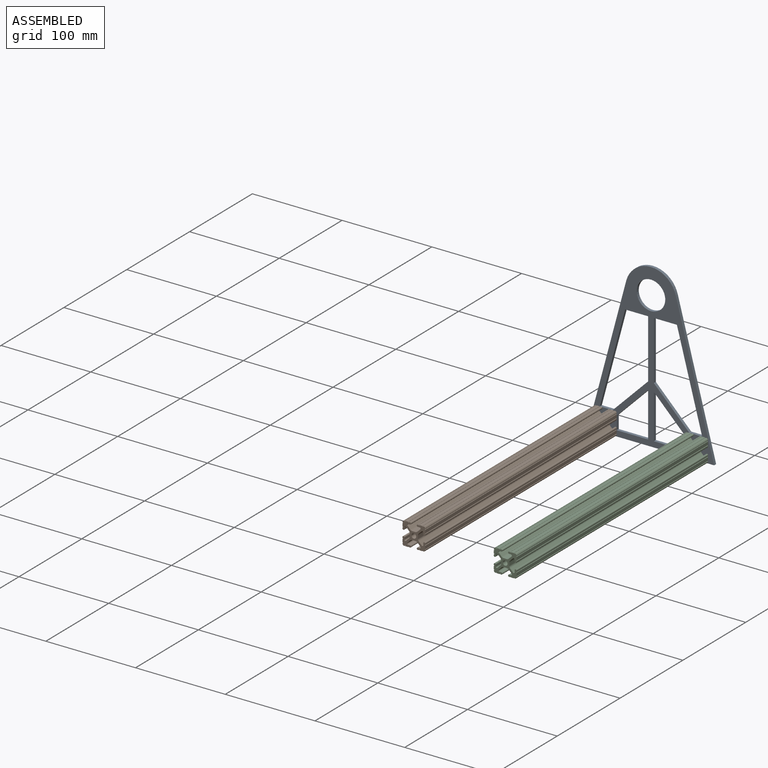
[diagram: assembled view]
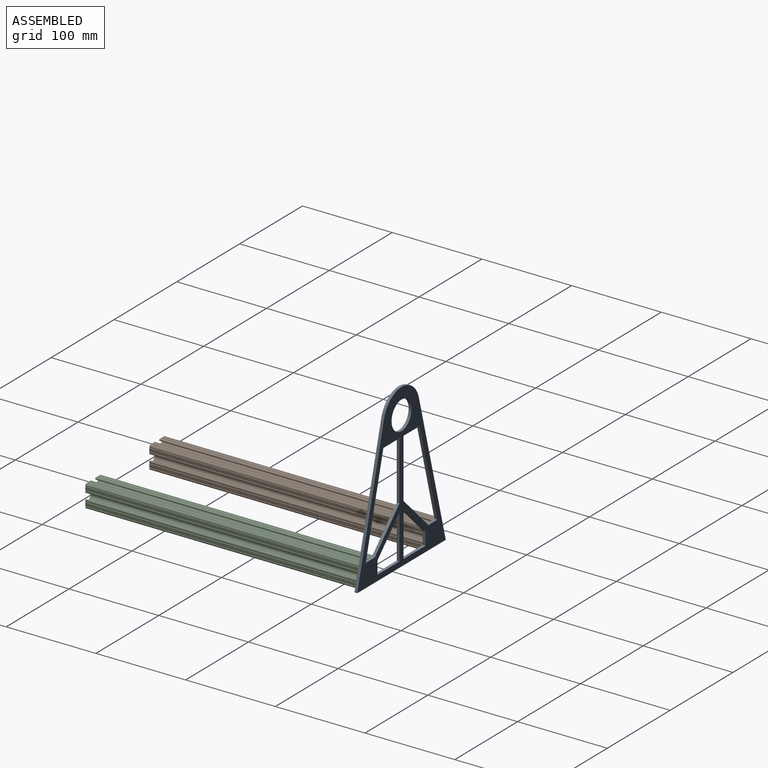
[diagram: assembled view, second angle]
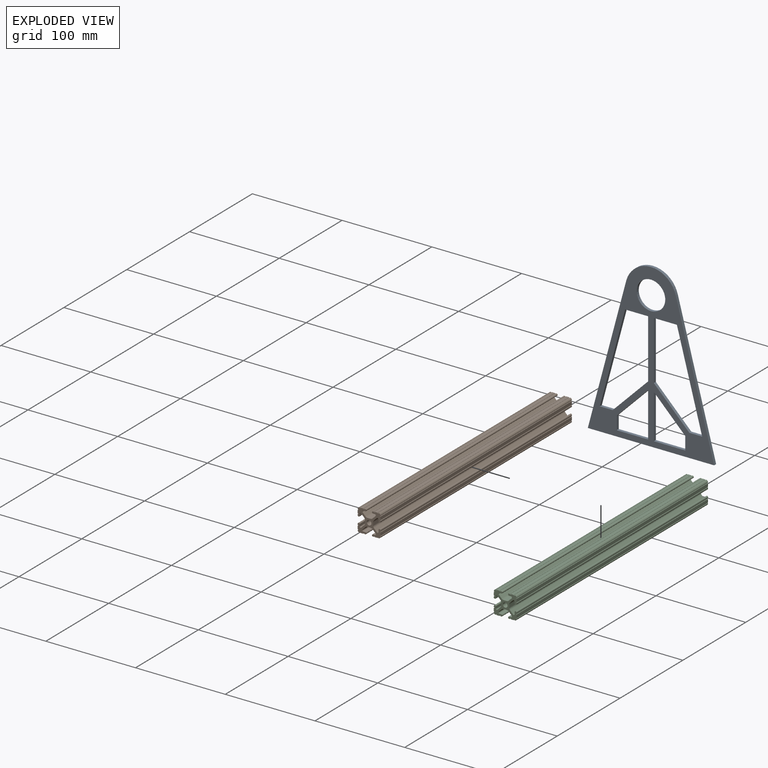
[diagram: exploded view]
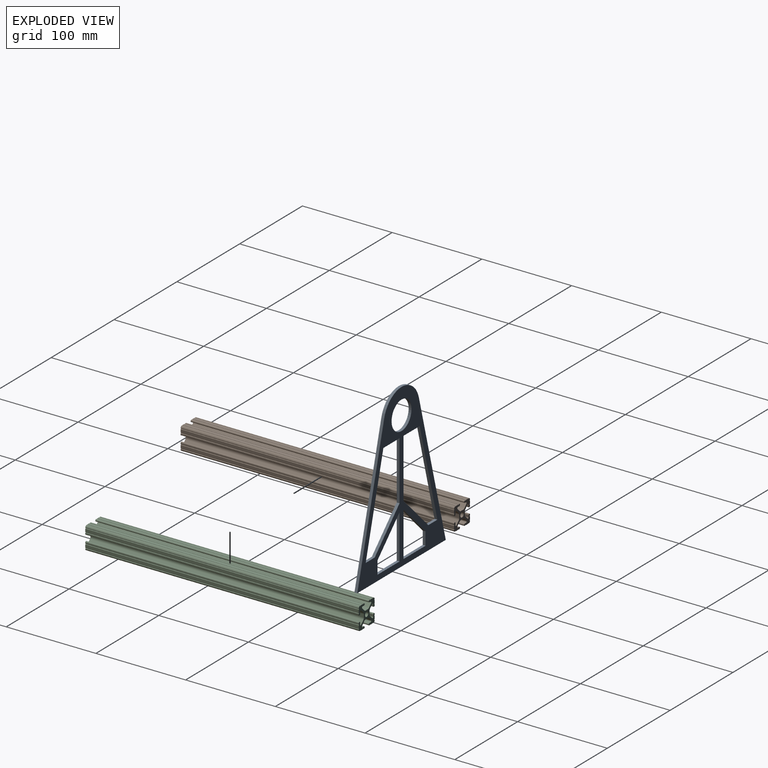
[diagram: exploded view, second angle]
ASSEMBLY  parts=3 mates=6
PART A: 25 faces, bbox 140.8x3.2x181 mm
  f0: plane 35.04x35.04mm, normal (0.71,0,-0.71), area 157.3mm2, adj f1,f17,f23,f24
  f1: plane 49.6x3.18mm, normal (-1,0,0), area 157.5mm2, adj f0,f2,f23,f24
  f2: plane 35.04x3.18mm, normal (0,0,1), area 111.2mm2, adj f1,f17,f23,f24
  f3: plane 159.8x42.82mm, normal (-0.97,0,0.26), area 525.2mm2, adj f4,f18,f23,f24
  f4: plane 140.84x3.18mm, normal (0,0,-1), area 447.2mm2, adj f3,f5,f23,f24
  f5: plane 159.8x42.82mm, normal (0.97,0,0.26), area 525.2mm2, adj f4,f18,f23,f24
  f6: plane 39.53x39.53mm, normal (0.71,0,0.71), area 177.5mm2, adj f7,f19,f23,f24
  f7: plane 65.56x3.18mm, normal (1,0,0), area 208.1mm2, adj f6,f8,f23,f24
  f8: plane 25.71x3.18mm, normal (0,0,-1), area 81.6mm2, adj f7,f9,f23,f24
  f9: plane 105.09x28.16mm, normal (-0.97,0,-0.26), area 345.4mm2, adj f8,f19,f23,f24
  f10: plane 35.04x35.04mm, normal (-0.71,0,-0.71), area 157.3mm2, adj f11,f20,f23,f24
  f11: plane 14.56x3.18mm, normal (-1,0,0), area 46.2mm2, adj f10,f12,f23,f24
  f12: plane 35.04x3.18mm, normal (0,0,1), area 111.2mm2, adj f11,f20,f23,f24
  f13: plane 65.56x3.18mm, normal (-1,0,0), area 208.1mm2, adj f14,f21,f23,f24
  f14: plane 39.53x39.53mm, normal (-0.71,0,0.71), area 177.5mm2, adj f13,f15,f23,f24
  f15: plane 14.34x3.18mm, normal (0,0,1), area 45.5mm2, adj f14,f16,f23,f24
  f16: plane 105.09x28.16mm, normal (0.97,0,-0.26), area 345.4mm2, adj f15,f21,f23,f24
  f17: plane 14.56x3.18mm, normal (1,0,0), area 46.2mm2, adj f0,f2,f23,f24
  f18: cylinder r=28.57mm len=55.2mm, axis (0,1,0), area 237.5mm2, adj f3,f5,f23,f24
  f19: plane 14.34x3.18mm, normal (0,0,1), area 45.5mm2, adj f6,f9,f23,f24
  f20: plane 49.6x3.18mm, normal (1,0,0), area 157.5mm2, adj f10,f12,f23,f24
  f21: plane 25.71x3.18mm, normal (0,0,-1), area 81.6mm2, adj f13,f16,f23,f24
  f22: cylinder r=15.88mm len=31.75mm, axis (0,1,0), area 316.7mm2, adj f23,f24
  f23: plane 180.98x140.84mm, normal (0,-1,0), area 6689mm2, adj f0,f1,f2,f3,f4,f5,f6,f7
  f24: plane 180.98x140.84mm, normal (0,1,0), area 6689mm2, adj f0,f1,f2,f3,f4,f5,f6,f7
PART B: 99 faces, bbox 25.4x304.8x25.4 mm
  f0: cylinder r=3.17mm len=304.8mm, axis (0,-1,0), area 759.2mm2, adj f1,f95,f96,f97
  f1: plane 304.8x3.23mm, normal (0.71,0,-0.71), area 1389.9mm2, adj f0,f2,f96,f97
  f2: cylinder r=1.08mm len=304.8mm, axis (0,-1,0), area 776.2mm2, adj f1,f3,f96,f97
  f3: plane 304.8x2.13mm, normal (0,0,1), area 648.9mm2, adj f2,f4,f96,f97
  f4: cylinder r=1.05mm len=304.8mm, axis (0,-1,0), area 502.2mm2, adj f3,f5,f96,f97
  f5: plane 304.8x0.11mm, normal (1,0,0), area 34.1mm2, adj f4,f6,f96,f97
  f6: cylinder r=1.05mm len=304.8mm, axis (0,-1,0), area 502.2mm2, adj f5,f7,f96,f97
  f7: plane 304.8x1.03mm, normal (0,0,-1), area 313.8mm2, adj f6,f8,f96,f97
  f8: cylinder r=0.51mm len=304.8mm, axis (0,-1,0), area 486.4mm2, adj f7,f9,f96,f97
  f9: plane 304.8x3.22mm, normal (0,0,-1), area 980.6mm2, adj f8,f10,f96,f97
  f10: cylinder r=0.51mm len=304.8mm, axis (0,-1,0), area 486.4mm2, adj f9,f11,f96,f97
  f11: cylinder r=2.11mm len=304.8mm, axis (0,-1,0), area 1024.8mm2, adj f10,f12,f96,f97
  f12: cylinder r=0.51mm len=304.8mm, axis (0,-1,0), area 486.4mm2, adj f11,f13,f96,f97
  f13: plane 304.8x3.22mm, normal (-1,0,0), area 980.6mm2, adj f12,f14,f96,f97
  f14: cylinder r=0.51mm len=304.8mm, axis (0,-1,0), area 486.4mm2, adj f13,f15,f96,f97
  f15: plane 304.8x1.03mm, normal (-1,0,0), area 313.8mm2, adj f14,f16,f96,f97
  f16: cylinder r=1.05mm len=304.8mm, axis (0,-1,0), area 502.2mm2, adj f15,f17,f96,f97
  f17: plane 304.8x0.11mm, normal (0,0,1), area 34.1mm2, adj f16,f18,f96,f97
  f18: cylinder r=1.05mm len=304.8mm, axis (0,-1,0), area 502.2mm2, adj f17,f19,f96,f97
  f19: plane 304.8x2.11mm, normal (1,0,0), area 644.5mm2, adj f18,f20,f96,f97
  f20: cylinder r=1.03mm len=304.8mm, axis (0,-1,0), area 737.5mm2, adj f19,f21,f96,f97
  f21: plane 304.8x3.3mm, normal (-0.71,0,0.71), area 1419.2mm2, adj f20,f22,f96,f97
  f22: cylinder r=3.17mm len=304.8mm, axis (0,-1,0), area 761.2mm2, adj f21,f23,f96,f97
  f23: plane 304.8x3.19mm, normal (-1,0,0), area 971.2mm2, adj f22,f24,f96,f97
  f24: cylinder r=3.17mm len=304.8mm, axis (0,-1,0), area 761.2mm2, adj f23,f25,f96,f97
  f25: plane 304.8x3.3mm, normal (-0.71,0,-0.71), area 1419.2mm2, adj f24,f26,f96,f97
  f26: cylinder r=1.03mm len=304.8mm, axis (0,-1,0), area 737.5mm2, adj f25,f27,f96,f97
  f27: plane 304.8x2.11mm, normal (1,0,0), area 644.5mm2, adj f26,f28,f96,f97
  f28: cylinder r=1.05mm len=304.8mm, axis (0,-1,0), area 502.2mm2, adj f27,f29,f96,f97
  f29: plane 304.8x0.11mm, normal (0,0,-1), area 34.1mm2, adj f28,f30,f96,f97
  f30: cylinder r=1.05mm len=304.8mm, axis (0,-1,0), area 502.2mm2, adj f29,f31,f96,f97
  f31: plane 304.8x1.03mm, normal (-1,0,0), area 313.8mm2, adj f30,f32,f96,f97
  f32: cylinder r=0.51mm len=304.8mm, axis (0,-1,0), area 486.4mm2, adj f31,f33,f96,f97
  f33: plane 304.8x3.22mm, normal (-1,0,0), area 980.6mm2, adj f32,f34,f96,f97
  f34: cylinder r=0.51mm len=304.8mm, axis (0,-1,0), area 486.4mm2, adj f33,f35,f96,f97
  f35: cylinder r=2.11mm len=304.8mm, axis (0,-1,0), area 1024.8mm2, adj f34,f36,f96,f97
  f36: cylinder r=0.51mm len=304.8mm, axis (0,-1,0), area 486.4mm2, adj f35,f37,f96,f97
  f37: plane 304.8x3.22mm, normal (0,0,1), area 980.6mm2, adj f36,f38,f96,f97
  f38: cylinder r=0.51mm len=304.8mm, axis (0,-1,0), area 486.4mm2, adj f37,f39,f96,f97
  f39: plane 304.8x1.03mm, normal (0,0,1), area 313.8mm2, adj f38,f40,f96,f97
  f40: cylinder r=1.05mm len=304.8mm, axis (0,-1,0), area 502.2mm2, adj f39,f41,f96,f97
  f41: plane 304.8x0.11mm, normal (1,0,0), area 34.1mm2, adj f40,f42,f96,f97
  f42: cylinder r=1.05mm len=304.8mm, axis (0,-1,0), area 502.2mm2, adj f41,f43,f96,f97
  f43: plane 304.8x2.19mm, normal (0,0,-1), area 667.3mm2, adj f42,f44,f96,f97
  f44: cylinder r=1.03mm len=304.8mm, axis (0,-1,0), area 742.9mm2, adj f43,f45,f96,f97
  f45: plane 304.8x3.31mm, normal (0.71,0,0.71), area 1424.6mm2, adj f44,f46,f96,f97
  f46: cylinder r=3.17mm len=304.8mm, axis (0,-1,0), area 759mm2, adj f45,f47,f96,f97
  f47: plane 304.8x3.31mm, normal (0,0,1), area 1009.4mm2, adj f46,f48,f96,f97
  f48: cylinder r=3.17mm len=304.8mm, axis (0,-1,0), area 759mm2, adj f47,f49,f96,f97
  f49: plane 304.8x3.31mm, normal (-0.71,0,0.71), area 1424.6mm2, adj f48,f50,f96,f97
  f50: cylinder r=1.03mm len=304.8mm, axis (0,-1,0), area 742.9mm2, adj f49,f51,f96,f97
  f51: plane 304.8x2.19mm, normal (0,0,-1), area 667.3mm2, adj f50,f52,f96,f97
  f52: cylinder r=1.05mm len=304.8mm, axis (0,-1,0), area 502.2mm2, adj f51,f53,f96,f97
  f53: plane 304.8x0.11mm, normal (-1,0,0), area 34.1mm2, adj f52,f54,f96,f97
  f54: cylinder r=1.05mm len=304.8mm, axis (0,-1,0), area 502.2mm2, adj f53,f55,f96,f97
  f55: plane 304.8x1.03mm, normal (0,0,1), area 313.8mm2, adj f54,f56,f96,f97
  f56: cylinder r=0.51mm len=304.8mm, axis (0,-1,0), area 486.4mm2, adj f55,f57,f96,f97
  f57: plane 304.8x3.22mm, normal (0,0,1), area 980.6mm2, adj f56,f58,f96,f97
  f58: cylinder r=0.51mm len=304.8mm, axis (0,-1,0), area 486.4mm2, adj f57,f59,f96,f97
  f59: cylinder r=2.11mm len=304.8mm, axis (0,-1,0), area 1024.8mm2, adj f58,f60,f96,f97
  f60: cylinder r=0.51mm len=304.8mm, axis (0,-1,0), area 486.4mm2, adj f59,f61,f96,f97
  f61: plane 304.8x3.22mm, normal (1,0,0), area 980.6mm2, adj f60,f62,f96,f97
  f62: cylinder r=0.51mm len=304.8mm, axis (0,-1,0), area 486.4mm2, adj f61,f63,f96,f97
  f63: plane 304.8x1.03mm, normal (1,0,0), area 313.8mm2, adj f62,f64,f96,f97
  f64: cylinder r=1.05mm len=304.8mm, axis (0,-1,0), area 502.2mm2, adj f63,f65,f96,f97
  f65: plane 304.8x0.11mm, normal (0,0,-1), area 34.1mm2, adj f64,f66,f96,f97
  f66: cylinder r=1.05mm len=304.8mm, axis (0,-1,0), area 502.2mm2, adj f65,f67,f96,f97
  f67: plane 304.8x2.11mm, normal (-1,0,0), area 644.5mm2, adj f66,f68,f96,f97
  f68: cylinder r=1.03mm len=304.8mm, axis (0,-1,0), area 737.5mm2, adj f67,f69,f96,f97
  f69: plane 304.8x3.3mm, normal (0.71,0,-0.71), area 1419.2mm2, adj f68,f70,f96,f97
  f70: cylinder r=3.17mm len=304.8mm, axis (0,-1,0), area 761.2mm2, adj f69,f71,f96,f97
  f71: plane 304.8x3.19mm, normal (1,0,0), area 971.2mm2, adj f70,f72,f96,f97
  f72: cylinder r=3.17mm len=304.8mm, axis (0,-1,0), area 761.2mm2, adj f71,f73,f96,f97
  f73: plane 304.8x3.3mm, normal (0.71,0,0.71), area 1419.2mm2, adj f72,f74,f96,f97
  f74: cylinder r=1.03mm len=304.8mm, axis (0,-1,0), area 737.5mm2, adj f73,f75,f96,f97
  f75: plane 304.8x2.11mm, normal (-1,0,0), area 644.5mm2, adj f74,f76,f96,f97
  f76: cylinder r=1.05mm len=304.8mm, axis (0,-1,0), area 502.2mm2, adj f75,f77,f96,f97
  f77: plane 304.8x0.11mm, normal (0,0,1), area 34.1mm2, adj f76,f78,f96,f97
  f78: cylinder r=1.05mm len=304.8mm, axis (0,-1,0), area 502.2mm2, adj f77,f79,f96,f97
  f79: plane 304.8x1.03mm, normal (1,0,0), area 313.8mm2, adj f78,f80,f96,f97
  f80: cylinder r=0.51mm len=304.8mm, axis (0,-1,0), area 486.4mm2, adj f79,f81,f96,f97
  f81: plane 304.8x3.22mm, normal (1,0,0), area 980.6mm2, adj f80,f82,f96,f97
  f82: cylinder r=0.51mm len=304.8mm, axis (0,-1,0), area 486.4mm2, adj f81,f83,f96,f97
  f83: cylinder r=2.11mm len=304.8mm, axis (0,-1,0), area 1024.8mm2, adj f82,f84,f96,f97
  f84: cylinder r=0.51mm len=304.8mm, axis (0,-1,0), area 486.4mm2, adj f83,f85,f96,f97
  f85: plane 304.8x3.22mm, normal (0,0,-1), area 980.6mm2, adj f84,f86,f96,f97
  f86: cylinder r=0.51mm len=304.8mm, axis (0,-1,0), area 486.4mm2, adj f85,f87,f96,f97
  f87: plane 304.8x1.03mm, normal (0,0,-1), area 313.8mm2, adj f86,f88,f96,f97
  f88: cylinder r=1.05mm len=304.8mm, axis (0,-1,0), area 502.2mm2, adj f87,f89,f96,f97
  f89: plane 304.8x0.11mm, normal (-1,0,0), area 34.1mm2, adj f88,f90,f96,f97
  f90: cylinder r=1.05mm len=304.8mm, axis (0,-1,0), area 502.2mm2, adj f89,f91,f96,f97
  f91: plane 304.8x2.13mm, normal (0,0,1), area 648.9mm2, adj f90,f92,f96,f97
  f92: cylinder r=1.08mm len=304.8mm, axis (0,-1,0), area 776.2mm2, adj f91,f93,f96,f97
  f93: plane 304.8x3.23mm, normal (-0.71,0,-0.71), area 1389.9mm2, adj f92,f94,f96,f97
  f94: cylinder r=3.17mm len=304.8mm, axis (0,-1,0), area 759.2mm2, adj f93,f95,f96,f97
  f95: plane 304.8x3.42mm, normal (0,0,-1), area 1042mm2, adj f0,f94,f96,f97
  f96: plane 25.4x25.4mm, normal (0,1,0), area 280.1mm2, adj f0,f1,f2,f3,f4,f5,f6,f7
  f97: plane 25.4x25.4mm, normal (0,-1,0), area 280.1mm2, adj f0,f1,f2,f3,f4,f5,f6,f7
  f98: cylinder r=2.6mm len=304.8mm, axis (0,-1,0), area 4986mm2, adj f96,f97
PART C: same geometry as B
PLACE A t=(-29.4,78.49,-6.92)mm
PLACE B t=(-80.31,-75.5,-146.62)mm
PLACE C t=(21.52,-75.5,-146.62)mm
MATE planar C.f57 <-> A.f19  axis (0,0,1) through (29.46,-75.5,-133.92)mm
MATE planar A.f23 <-> C.f98  axis (0,-1,0) through (-29.4,76.9,-84.45)mm
MATE planar B.f61 <-> A.f17  axis (1,0,0) through (-67.61,76.9,-138.68)mm
MATE planar A.f23 <-> B.f98  axis (0,-1,0) through (-72.1,76.9,-133.92)mm
MATE planar B.f37 <-> A.f15  axis (0,0,1) through (-88.25,-75.5,-133.92)mm
MATE planar C.f33 <-> A.f11  axis (-1,0,0) through (8.82,-75.5,-138.68)mm
